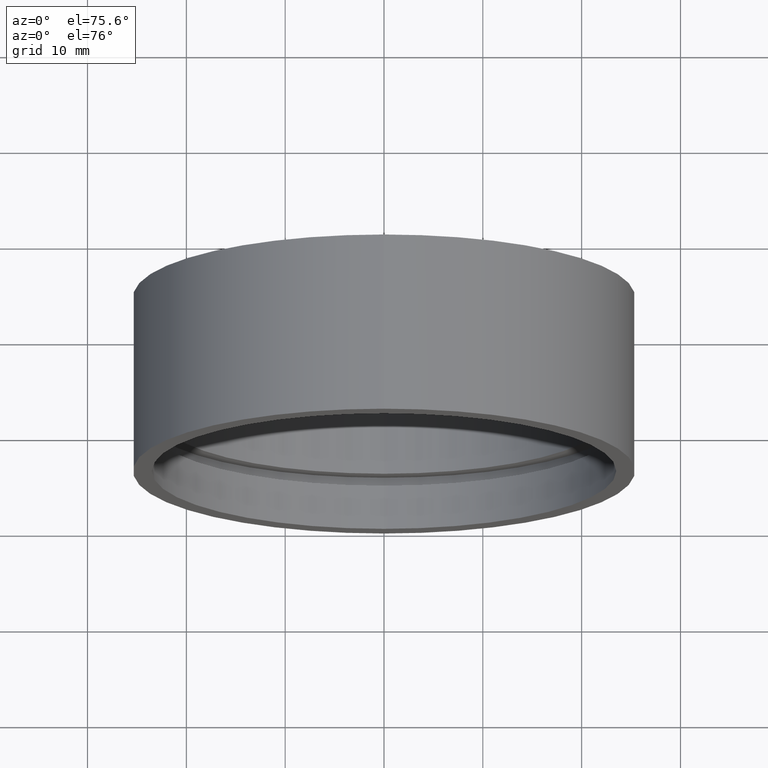
[diagram: clean part render]
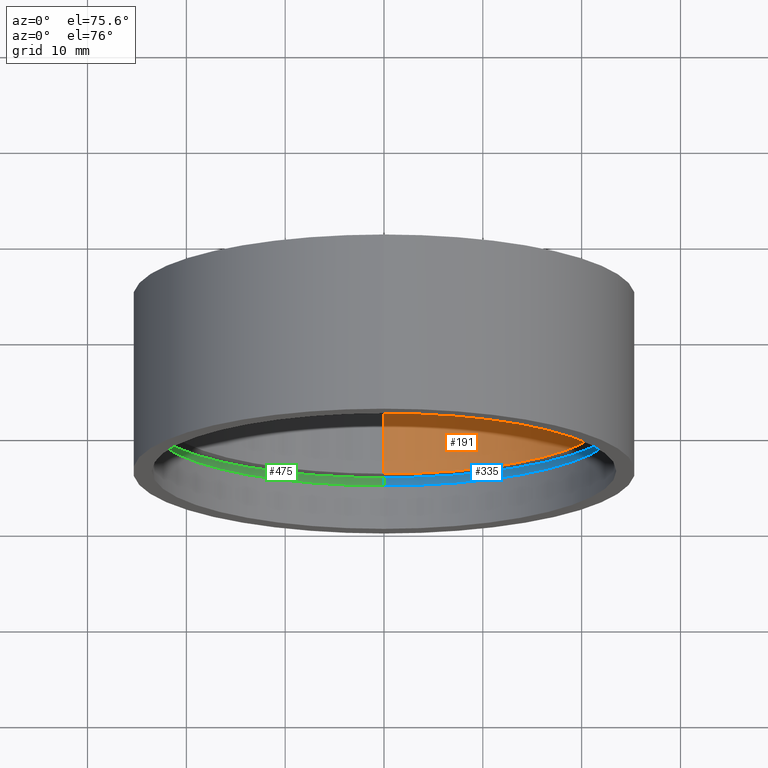
[diagram: same view with three faces highlighted in distinct colors, each labeled with its STEP entity id]
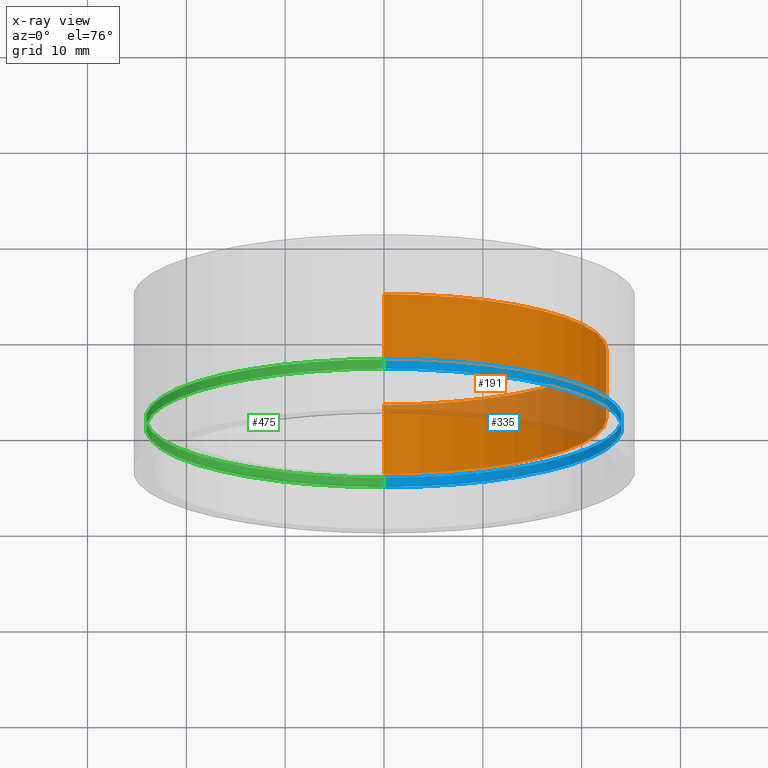
[diagram: x-ray of the same camera — body ghosted, the three highlighted faces saturated]
A machine part, auxiliary view with three faces highlighted in distinct colors.
The next image is the same camera in x-ray (body ghosted, the three faces saturated) — at least one of them is partly hidden behind the body in this view.
Their STEP definitions:

[orange] entity #191 — the highlighted cylindrical surface (partial cylindrical patch) has radius 22.5 mm, axis along (-0, 1, -0).
#5 = VERTEX_POINT ( 'NONE', #578 ) ;
#8 = CYLINDRICAL_SURFACE ( 'NONE', #192, 22.50000000000001800 ) ;
#25 = EDGE_LOOP ( 'NONE', ( #536, #164, #471, #154 ) ) ;
#31 = DIRECTION ( 'NONE',  ( -0.0000000000000000000, 1.000000000000000000, -0.0000000000000000000 ) ) ;
#75 = CARTESIAN_POINT ( 'NONE',  ( 0.0000000000000000000, 161.3761669434274500, 0.0000000000000000000 ) ) ;
#82 = LINE ( 'NONE', #489, #579 ) ;
#92 = CIRCLE ( 'NONE', #158, 22.50000000000001800 ) ;
#107 = VECTOR ( 'NONE', #375, 1000.000000000000000 ) ;
#109 = EDGE_CURVE ( 'NONE', #153, #5, #82, .T. ) ;
#116 = DIRECTION ( 'NONE',  ( -0.0000000000000000000, 1.000000000000000000, -0.0000000000000000000 ) ) ;
#145 = EDGE_CURVE ( 'NONE', #569, #184, #610, .T. ) ;
#153 = VERTEX_POINT ( 'NONE', #550 ) ;
#154 = ORIENTED_EDGE ( 'NONE', *, *, #482, .T. ) ;
#158 = AXIS2_PLACEMENT_3D ( 'NONE', #177, #561, #551 ) ;
#164 = ORIENTED_EDGE ( 'NONE', *, *, #244, .F. ) ;
#166 = CARTESIAN_POINT ( 'NONE',  ( 0.0000000000000000000, 5.499999999999976900, 22.50000000000001800 ) ) ;
#177 = CARTESIAN_POINT ( 'NONE',  ( 0.0000000000000000000, 5.499999999999976900, 0.0000000000000000000 ) ) ;
#184 = VERTEX_POINT ( 'NONE', #558 ) ;
#185 = FACE_OUTER_BOUND ( 'NONE', #25, .T. ) ;
#190 = AXIS2_PLACEMENT_3D ( 'NONE', #500, #116, #413 ) ;
#191 = ADVANCED_FACE ( 'NONE', ( #185 ), #8, .F. ) ;
#192 = AXIS2_PLACEMENT_3D ( 'NONE', #75, #31, #424 ) ;
#244 = EDGE_CURVE ( 'NONE', #569, #153, #92, .T. ) ;
#303 = DIRECTION ( 'NONE',  ( -0.0000000000000000000, 1.000000000000000000, -0.0000000000000000000 ) ) ;
#312 = CARTESIAN_POINT ( 'NONE',  ( 0.0000000000000000000, 161.3761669434274500, 22.50000000000001800 ) ) ;
#375 = DIRECTION ( 'NONE',  ( -0.0000000000000000000, 1.000000000000000000, -0.0000000000000000000 ) ) ;
#413 = DIRECTION ( 'NONE',  ( 0.0000000000000000000, 0.0000000000000000000, 1.000000000000000000 ) ) ;
#424 = DIRECTION ( 'NONE',  ( 0.0000000000000000000, 0.0000000000000000000, 1.000000000000000000 ) ) ;
#463 = CIRCLE ( 'NONE', #190, 22.50000000000001800 ) ;
#471 = ORIENTED_EDGE ( 'NONE', *, *, #145, .T. ) ;
#482 = EDGE_CURVE ( 'NONE', #184, #5, #463, .T. ) ;
#489 = CARTESIAN_POINT ( 'NONE',  ( 2.755455298081546700E-015, 161.3761669434274500, -22.50000000000001800 ) ) ;
#500 = CARTESIAN_POINT ( 'NONE',  ( 0.0000000000000000000, 12.69999999999998900, 0.0000000000000000000 ) ) ;
#536 = ORIENTED_EDGE ( 'NONE', *, *, #109, .F. ) ;
#550 = CARTESIAN_POINT ( 'NONE',  ( 2.755455298081546700E-015, 5.499999999999976900, -22.50000000000001800 ) ) ;
#551 = DIRECTION ( 'NONE',  ( 0.0000000000000000000, 0.0000000000000000000, 1.000000000000000000 ) ) ;
#558 = CARTESIAN_POINT ( 'NONE',  ( 0.0000000000000000000, 12.69999999999998900, 22.50000000000001800 ) ) ;
#561 = DIRECTION ( 'NONE',  ( -0.0000000000000000000, 1.000000000000000000, -0.0000000000000000000 ) ) ;
#569 = VERTEX_POINT ( 'NONE', #166 ) ;
#578 = CARTESIAN_POINT ( 'NONE',  ( 2.755455298081546700E-015, 12.69999999999998900, -22.50000000000001800 ) ) ;
#579 = VECTOR ( 'NONE', #303, 1000.000000000000000 ) ;
#610 = LINE ( 'NONE', #312, #107 ) ;

[blue] entity #335 — the highlighted cylindrical surface (partial cylindrical patch) has radius 24.1 mm, axis along (-0, 1, -0).
#6 = EDGE_CURVE ( 'NONE', #151, #606, #517, .T. ) ;
#29 = CARTESIAN_POINT ( 'NONE',  ( 0.0000000000000000000, 4.499999999999976000, 24.10000000000001900 ) ) ;
#40 = CARTESIAN_POINT ( 'NONE',  ( 0.0000000000000000000, 161.3761669434274500, 0.0000000000000000000 ) ) ;
#44 = VECTOR ( 'NONE', #480, 1000.000000000000000 ) ;
#54 = AXIS2_PLACEMENT_3D ( 'NONE', #40, #380, #389 ) ;
#65 = EDGE_LOOP ( 'NONE', ( #227, #81, #441, #411 ) ) ;
#81 = ORIENTED_EDGE ( 'NONE', *, *, #280, .F. ) ;
#91 = AXIS2_PLACEMENT_3D ( 'NONE', #599, #523, #381 ) ;
#147 = CIRCLE ( 'NONE', #91, 24.10000000000001900 ) ;
#151 = VERTEX_POINT ( 'NONE', #29 ) ;
#188 = VERTEX_POINT ( 'NONE', #464 ) ;
#227 = ORIENTED_EDGE ( 'NONE', *, *, #343, .F. ) ;
#231 = CARTESIAN_POINT ( 'NONE',  ( 0.0000000000000000000, 5.499999999999976900, 24.10000000000001900 ) ) ;
#243 = VERTEX_POINT ( 'NONE', #462 ) ;
#267 = FACE_OUTER_BOUND ( 'NONE', #65, .T. ) ;
#280 = EDGE_CURVE ( 'NONE', #151, #243, #147, .T. ) ;
#297 = CIRCLE ( 'NONE', #584, 24.10000000000001900 ) ;
#298 = CARTESIAN_POINT ( 'NONE',  ( 0.0000000000000000000, 161.3761669434274500, 24.10000000000001900 ) ) ;
#330 = VECTOR ( 'NONE', #351, 1000.000000000000000 ) ;
#335 = ADVANCED_FACE ( 'NONE', ( #267 ), #554, .F. ) ;
#343 = EDGE_CURVE ( 'NONE', #243, #188, #498, .T. ) ;
#351 = DIRECTION ( 'NONE',  ( -0.0000000000000000000, 1.000000000000000000, -0.0000000000000000000 ) ) ;
#380 = DIRECTION ( 'NONE',  ( -0.0000000000000000000, 1.000000000000000000, -0.0000000000000000000 ) ) ;
#381 = DIRECTION ( 'NONE',  ( 0.0000000000000000000, 0.0000000000000000000, 1.000000000000000000 ) ) ;
#384 = CARTESIAN_POINT ( 'NONE',  ( 2.951398785945123600E-015, 161.3761669434274500, -24.10000000000001900 ) ) ;
#389 = DIRECTION ( 'NONE',  ( 0.0000000000000000000, 0.0000000000000000000, 1.000000000000000000 ) ) ;
#409 = DIRECTION ( 'NONE',  ( 0.0000000000000000000, 0.0000000000000000000, 1.000000000000000000 ) ) ;
#411 = ORIENTED_EDGE ( 'NONE', *, *, #557, .T. ) ;
#441 = ORIENTED_EDGE ( 'NONE', *, *, #6, .T. ) ;
#462 = CARTESIAN_POINT ( 'NONE',  ( 2.951398785945123600E-015, 4.499999999999976000, -24.10000000000001900 ) ) ;
#464 = CARTESIAN_POINT ( 'NONE',  ( 2.951398785945123600E-015, 5.499999999999976900, -24.10000000000001900 ) ) ;
#480 = DIRECTION ( 'NONE',  ( -0.0000000000000000000, 1.000000000000000000, -0.0000000000000000000 ) ) ;
#498 = LINE ( 'NONE', #384, #44 ) ;
#499 = DIRECTION ( 'NONE',  ( -0.0000000000000000000, 1.000000000000000000, -0.0000000000000000000 ) ) ;
#517 = LINE ( 'NONE', #298, #330 ) ;
#523 = DIRECTION ( 'NONE',  ( -0.0000000000000000000, 1.000000000000000000, -0.0000000000000000000 ) ) ;
#545 = CARTESIAN_POINT ( 'NONE',  ( 0.0000000000000000000, 5.499999999999976900, 0.0000000000000000000 ) ) ;
#554 = CYLINDRICAL_SURFACE ( 'NONE', #54, 24.10000000000001900 ) ;
#557 = EDGE_CURVE ( 'NONE', #606, #188, #297, .T. ) ;
#584 = AXIS2_PLACEMENT_3D ( 'NONE', #545, #499, #409 ) ;
#599 = CARTESIAN_POINT ( 'NONE',  ( 0.0000000000000000000, 4.499999999999976000, 0.0000000000000000000 ) ) ;
#606 = VERTEX_POINT ( 'NONE', #231 ) ;

[green] entity #475 — the highlighted cylindrical surface (partial cylindrical patch) has radius 24.1 mm, axis along (-0, 1, -0).
#6 = EDGE_CURVE ( 'NONE', #151, #606, #517, .T. ) ;
#16 = AXIS2_PLACEMENT_3D ( 'NONE', #26, #493, #316 ) ;
#26 = CARTESIAN_POINT ( 'NONE',  ( 0.0000000000000000000, 161.3761669434274500, 0.0000000000000000000 ) ) ;
#29 = CARTESIAN_POINT ( 'NONE',  ( 0.0000000000000000000, 4.499999999999976000, 24.10000000000001900 ) ) ;
#35 = EDGE_LOOP ( 'NONE', ( #127, #329, #246, #582 ) ) ;
#44 = VECTOR ( 'NONE', #480, 1000.000000000000000 ) ;
#70 = CARTESIAN_POINT ( 'NONE',  ( 0.0000000000000000000, 4.499999999999976000, 0.0000000000000000000 ) ) ;
#85 = CARTESIAN_POINT ( 'NONE',  ( 0.0000000000000000000, 5.499999999999976900, 0.0000000000000000000 ) ) ;
#127 = ORIENTED_EDGE ( 'NONE', *, *, #270, .F. ) ;
#138 = DIRECTION ( 'NONE',  ( 0.0000000000000000000, 0.0000000000000000000, 1.000000000000000000 ) ) ;
#151 = VERTEX_POINT ( 'NONE', #29 ) ;
#188 = VERTEX_POINT ( 'NONE', #464 ) ;
#218 = AXIS2_PLACEMENT_3D ( 'NONE', #85, #431, #138 ) ;
#231 = CARTESIAN_POINT ( 'NONE',  ( 0.0000000000000000000, 5.499999999999976900, 24.10000000000001900 ) ) ;
#243 = VERTEX_POINT ( 'NONE', #462 ) ;
#246 = ORIENTED_EDGE ( 'NONE', *, *, #304, .T. ) ;
#270 = EDGE_CURVE ( 'NONE', #243, #151, #398, .T. ) ;
#298 = CARTESIAN_POINT ( 'NONE',  ( 0.0000000000000000000, 161.3761669434274500, 24.10000000000001900 ) ) ;
#304 = EDGE_CURVE ( 'NONE', #188, #606, #406, .T. ) ;
#316 = DIRECTION ( 'NONE',  ( 0.0000000000000000000, 0.0000000000000000000, 1.000000000000000000 ) ) ;
#320 = DIRECTION ( 'NONE',  ( -0.0000000000000000000, 1.000000000000000000, -0.0000000000000000000 ) ) ;
#329 = ORIENTED_EDGE ( 'NONE', *, *, #343, .T. ) ;
#330 = VECTOR ( 'NONE', #351, 1000.000000000000000 ) ;
#337 = CYLINDRICAL_SURFACE ( 'NONE', #16, 24.10000000000001900 ) ;
#343 = EDGE_CURVE ( 'NONE', #243, #188, #498, .T. ) ;
#351 = DIRECTION ( 'NONE',  ( -0.0000000000000000000, 1.000000000000000000, -0.0000000000000000000 ) ) ;
#363 = FACE_OUTER_BOUND ( 'NONE', #35, .T. ) ;
#384 = CARTESIAN_POINT ( 'NONE',  ( 2.951398785945123600E-015, 161.3761669434274500, -24.10000000000001900 ) ) ;
#398 = CIRCLE ( 'NONE', #547, 24.10000000000001900 ) ;
#406 = CIRCLE ( 'NONE', #218, 24.10000000000001900 ) ;
#421 = DIRECTION ( 'NONE',  ( 0.0000000000000000000, 0.0000000000000000000, 1.000000000000000000 ) ) ;
#431 = DIRECTION ( 'NONE',  ( -0.0000000000000000000, 1.000000000000000000, -0.0000000000000000000 ) ) ;
#462 = CARTESIAN_POINT ( 'NONE',  ( 2.951398785945123600E-015, 4.499999999999976000, -24.10000000000001900 ) ) ;
#464 = CARTESIAN_POINT ( 'NONE',  ( 2.951398785945123600E-015, 5.499999999999976900, -24.10000000000001900 ) ) ;
#475 = ADVANCED_FACE ( 'NONE', ( #363 ), #337, .F. ) ;
#480 = DIRECTION ( 'NONE',  ( -0.0000000000000000000, 1.000000000000000000, -0.0000000000000000000 ) ) ;
#493 = DIRECTION ( 'NONE',  ( -0.0000000000000000000, 1.000000000000000000, -0.0000000000000000000 ) ) ;
#498 = LINE ( 'NONE', #384, #44 ) ;
#517 = LINE ( 'NONE', #298, #330 ) ;
#547 = AXIS2_PLACEMENT_3D ( 'NONE', #70, #320, #421 ) ;
#582 = ORIENTED_EDGE ( 'NONE', *, *, #6, .F. ) ;
#606 = VERTEX_POINT ( 'NONE', #231 ) ;